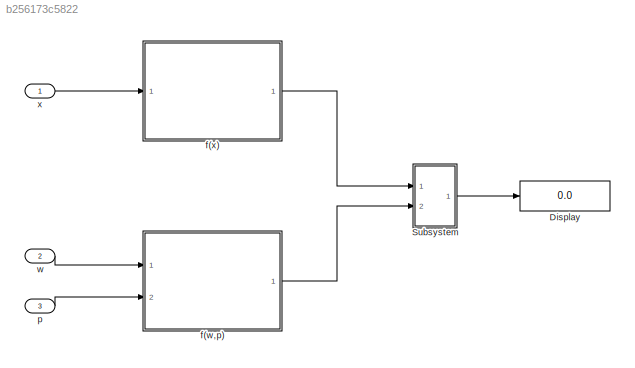
MODEL slx_b256173c5822
KIND model
CONFIG AbsTol = auto
CONFIG EnableMultiTasking = off
CONFIG FixedStep = auto
CONFIG MaxStep = auto
CONFIG MinStep = auto
CONFIG RelTol = 1e-3
CONFIG SampleTimeConstraint = Unconstrained
CONFIG SolverName = VariableStepAuto
CONFIG StartTime = 0.0
CONFIG StopTime = 10.0
BLOCK [Display] Display
  Decimation = 1
  Ports = [1]
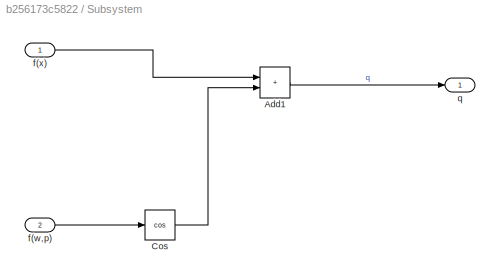
BLOCK [SubSystem] Subsystem
  Ports = [2, 1]
  RequestExecContextInheritance = off
BLOCK [Sum] Subsystem/Add1
  IconShape = rectangular
  Ports = [2, 1]
BLOCK [Trigonometry] Subsystem/Cos
  Operator = cos
  Ports = [1, 1]
BLOCK [Inport] Subsystem/f(w,p)
  Port = 2
BLOCK [Inport] Subsystem/f(x)
BLOCK [Outport] Subsystem/q
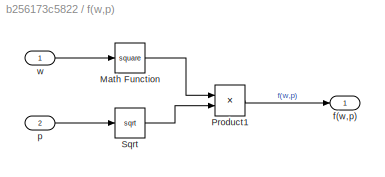
BLOCK [SubSystem] f(w,p)
  Ports = [2, 1]
  RequestExecContextInheritance = off
BLOCK [Math] f(w,p)/Math Function
  Operator = square
  Ports = [1, 1]
BLOCK [Product] f(w,p)/Product1
  Ports = [2, 1]
BLOCK [Sqrt] f(w,p)/Sqrt
BLOCK [Outport] f(w,p)/f(w,p)
BLOCK [Inport] f(w,p)/p
  Port = 2
BLOCK [Inport] f(w,p)/w
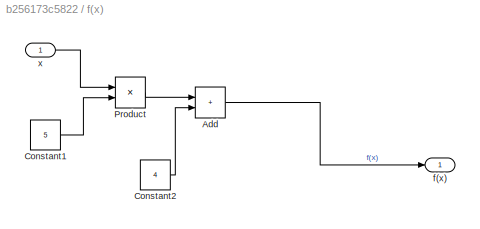
BLOCK [SubSystem] f(x)
  Ports = [1, 1]
  RequestExecContextInheritance = off
BLOCK [Sum] f(x)/Add
  IconShape = rectangular
  Ports = [2, 1]
BLOCK [Constant] f(x)/Constant1
  Value = 5
BLOCK [Constant] f(x)/Constant2
  Value = 4
BLOCK [Product] f(x)/Product
  Ports = [2, 1]
BLOCK [Outport] f(x)/f(x)
BLOCK [Inport] f(x)/x
BLOCK [Inport] p
  Port = 3
BLOCK [Inport] w
  Port = 2
BLOCK [Inport] x
LINE Subsystem/Add1:1 -> Subsystem/q:1
LINE Subsystem/Cos:1 -> Subsystem/Add1:2
LINE Subsystem/f(w,p):1 -> Subsystem/Cos:1
LINE Subsystem/f(x):1 -> Subsystem/Add1:1
LINE Subsystem:1 -> Display:1
LINE f(w,p)/Math Function:1 -> f(w,p)/Product1:1
LINE f(w,p)/Product1:1 -> f(w,p)/f(w,p):1
LINE f(w,p)/Sqrt:1 -> f(w,p)/Product1:2
LINE f(w,p)/p:1 -> f(w,p)/Sqrt:1
LINE f(w,p)/w:1 -> f(w,p)/Math Function:1
LINE f(w,p):1 -> Subsystem:2
LINE f(x)/Add:1 -> f(x)/f(x):1
LINE f(x)/Constant1:1 -> f(x)/Product:2
LINE f(x)/Constant2:1 -> f(x)/Add:2
LINE f(x)/Product:1 -> f(x)/Add:1
LINE f(x)/x:1 -> f(x)/Product:1
LINE f(x):1 -> Subsystem:1
LINE p:1 -> f(w,p):2
LINE w:1 -> f(w,p):1
LINE x:1 -> f(x):1
